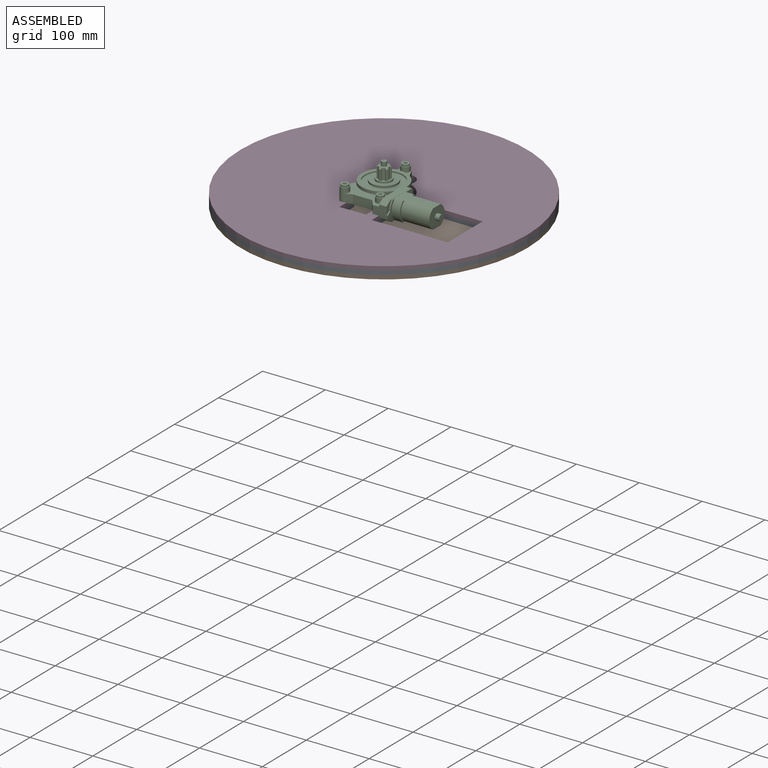
[diagram: assembled view]
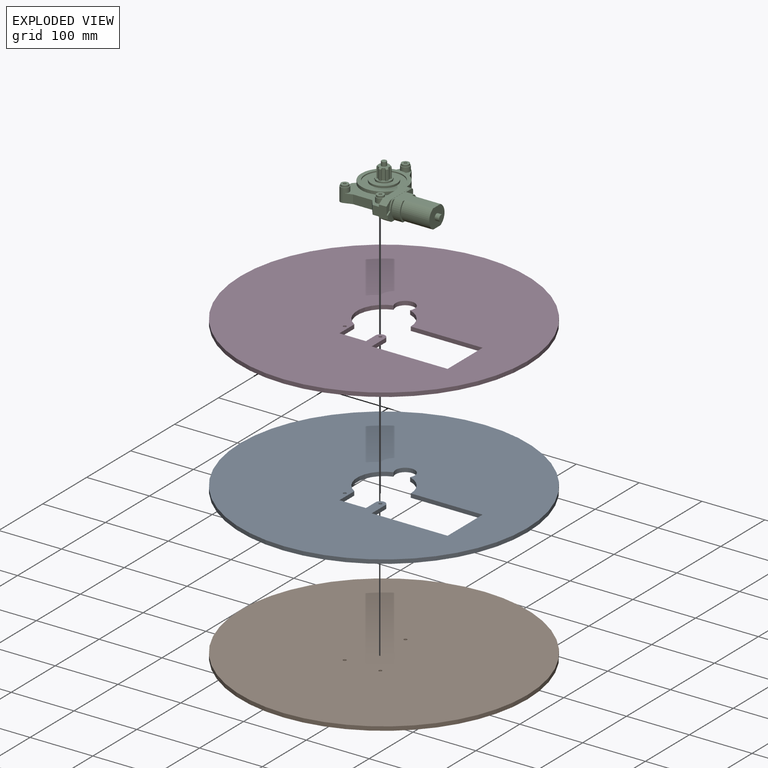
[diagram: exploded view]
GUIDED TOUR — MATED ASSEMBLY (Onshape document 587a86748546b116b2b0f726, AutoMate assembly 587a86748546b116b2b0f726_534ec9061648074f6dd9f165_3a35d88e8bba72077cc8f2f5_default)

This assembly has 4 components, labeled P0..P3 below (a component is one placed occurrence of a part; the same part can appear more than once), held together by 6 mates. A mate is a constraint between two components; its type names the relative motion it leaves free:
  CYLINDRICAL — leaves both rotation about and translation along the listed axis free,
  PLANAR — leaves sliding in the plane through the listed point (normal = the listed direction) and rotation about that normal free.
Axis/direction vectors are unit vectors and 'through' points are millimeter coordinates, both in the assembly's world frame.

MATES
  1. CYLINDRICAL "Cylindrical 3": P3 <-> P0, axis (0.000, 0.000, -1.000) through (147.65, -48.46, 6.53) mm
  2. CYLINDRICAL "Cylindrical 2": P0 <-> P1, axis (0.000, 0.000, -1.000) through (147.65, -48.46, 0.17) mm
  3. PLANAR "Planar 3": P0 <-> P1, direction (0.000, 0.000, -1.000) through (141.31, -45.52, -3.00) mm
  4. PLANAR "Planar 1": P2 <-> P1, direction (0.000, 0.000, -1.000) through (147.65, 0.26, -3.00) mm
  5. CYLINDRICAL "Cylindrical 1": P1 <-> P2, axis (0.000, 0.000, 1.000) through (147.65, -48.46, -3.00) mm
  6. PLANAR "Planar 4": P3 <-> P0, direction (0.000, 0.000, -1.000) through (141.31, -45.52, 3.35) mm

ASSEMBLY ORDER
  1. P2 — the base component [order verified]
  2. P3 [order verified]
  3. P0 [order verified]
  4. P1 [order verified]
Order-tag legend:
  [order verified] — this step's position reverses a verified removal order: the component was checked to insert without passing through the ones already placed.

Of the 4 components, 2 carry the full construction recipe — the FeatureScript program that regenerates the part's solid from scratch; the rest are supplied as boundary geometry only.
Each toured component is shown spotlighted twice — in the assembled view, then in the exploded view, where a leader line traces a displaced component back to its assembled socket (saturated green if recipe-attached, orange if geometry-only; every other component desaturated gray) — followed by its recipe or geometry summary and the mates that hold it.
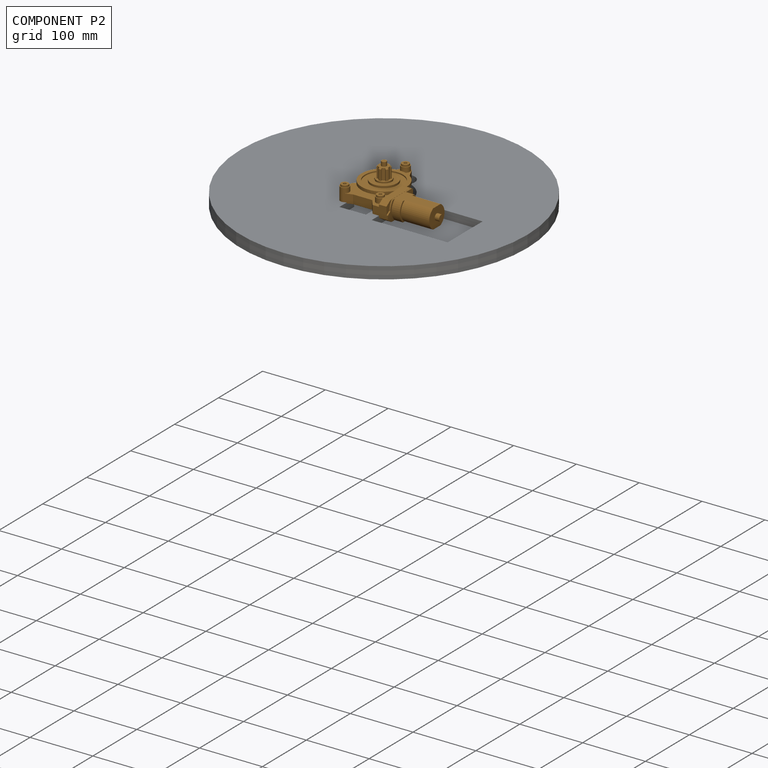
[diagram: component P2 — assembled]
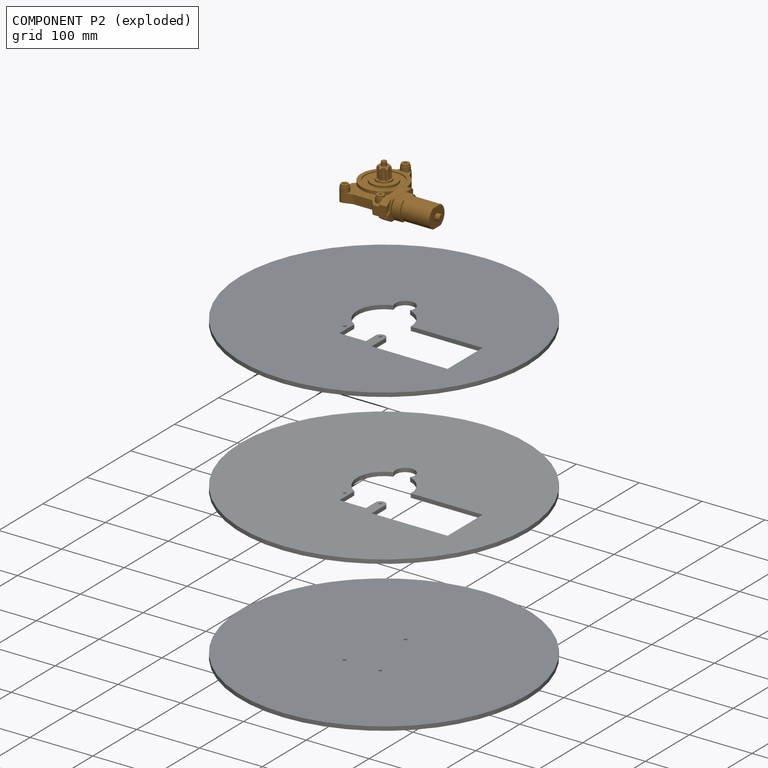
[diagram: component P2 — exploded]
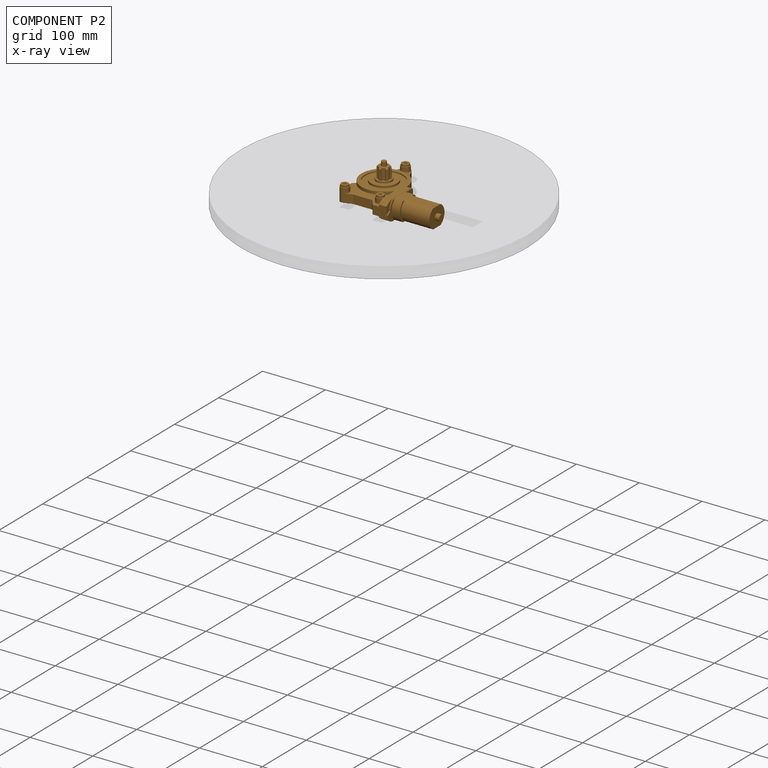
[diagram: component P2 — x-ray view]
COMPONENT P2 — geometry summary (no construction recipe available for this part):
  bounding box: 151.0 x 119.9 x 57.9 mm
  B-rep topology: 1 solid, 229 faces, 1130 edges
  volume: 213899 mm^3 (20% of its bounding box)
Held by: PLANAR mate "Planar 1" to P1; CYLINDRICAL mate "Cylindrical 1" to P1.
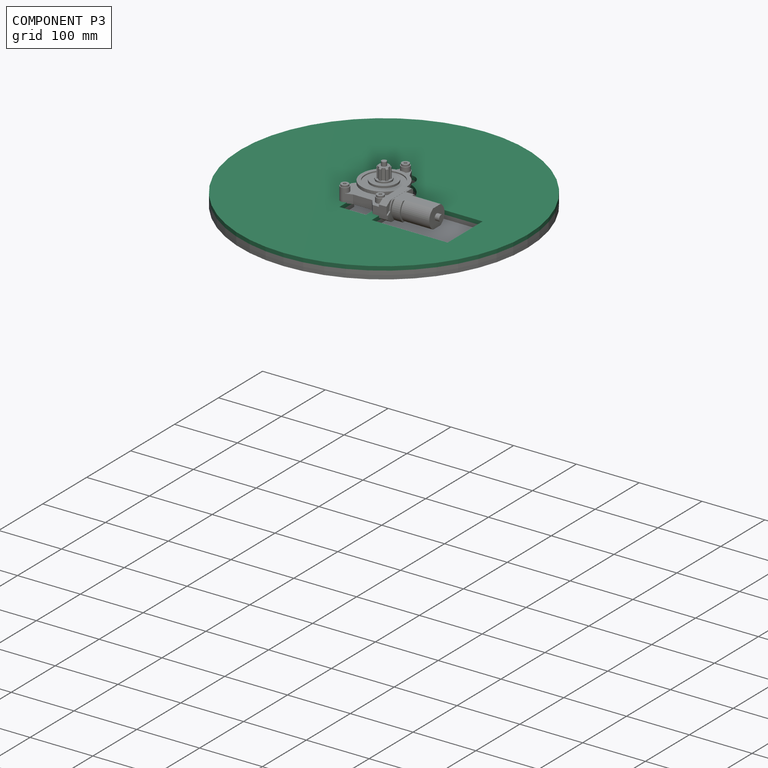
[diagram: component P3 — assembled]
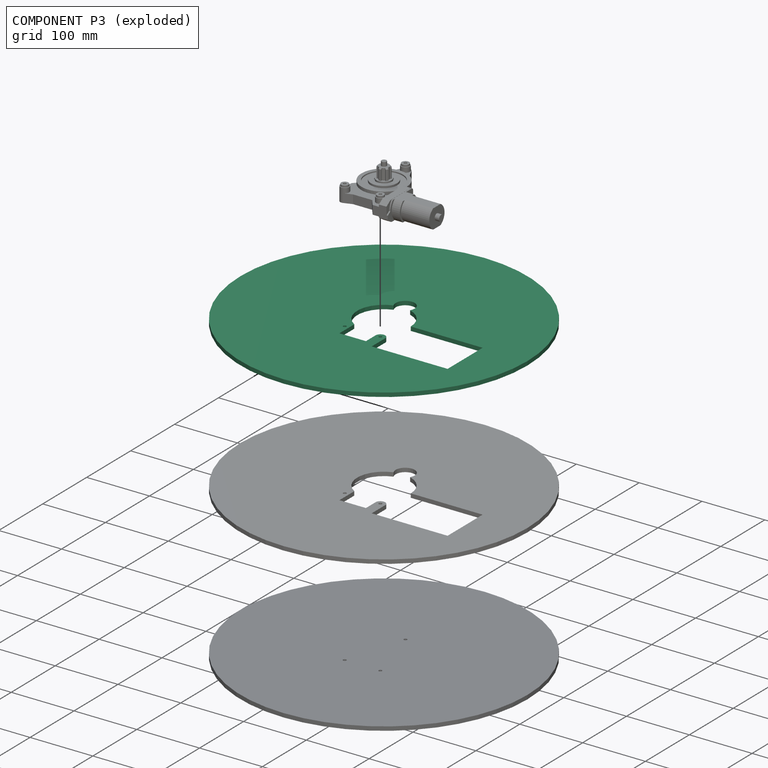
[diagram: component P3 — exploded]
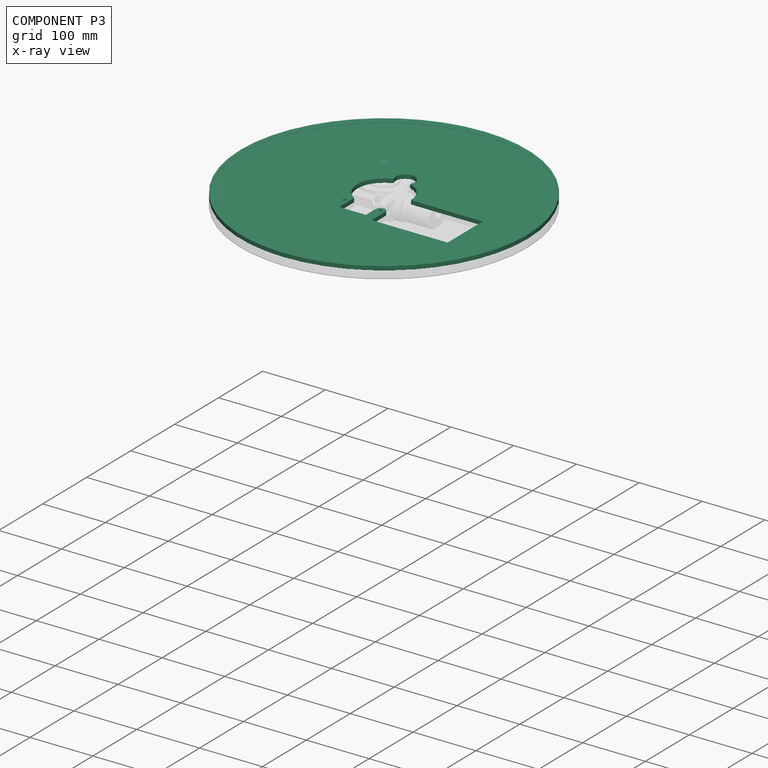
[diagram: component P3 — x-ray view]
COMPONENT P3 — same part as P0 (CADFS 00446631); its construction recipe is shown at P0.
Held by: CYLINDRICAL mate "Cylindrical 3" to P0; PLANAR mate "Planar 4" to P0.
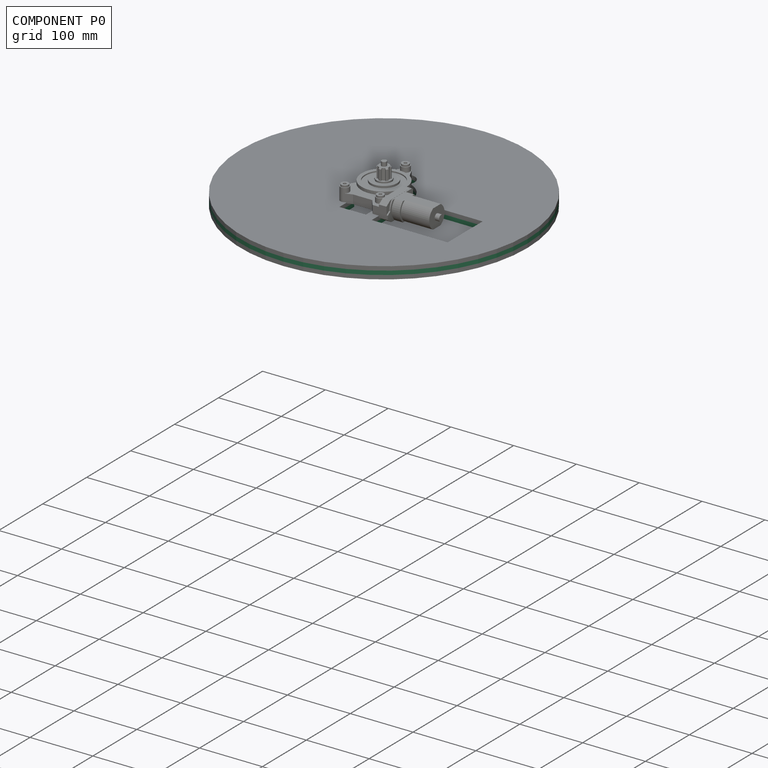
[diagram: component P0 — assembled]
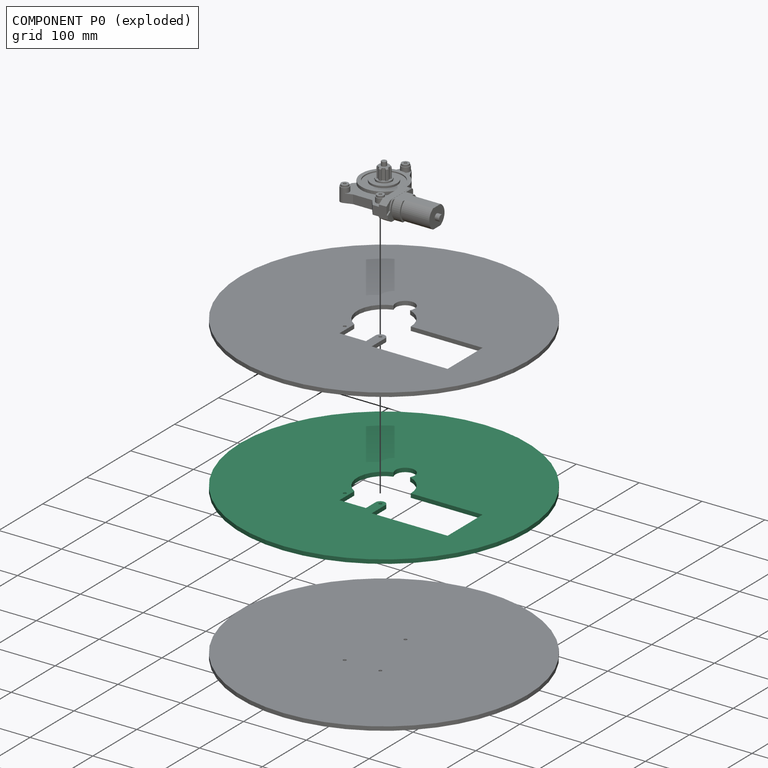
[diagram: component P0 — exploded]
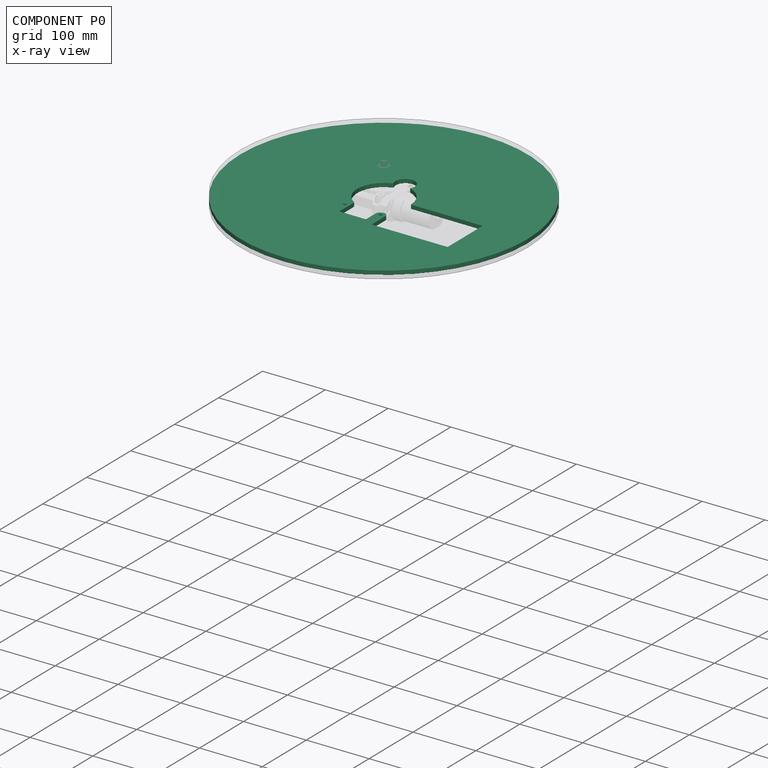
[diagram: component P0 — x-ray view]
COMPONENT P0 — recipe-attached (CADFS 00446631, mesh-verified: the recipe's output STEP matches this component's geometry to below the mesh-comparison resolution (tessellation chordal tolerance ~0.97 mm)).
Held by: CYLINDRICAL mate "Cylindrical 3" to P3; CYLINDRICAL mate "Cylindrical 2" to P1; PLANAR mate "Planar 3" to P1; PLANAR mate "Planar 4" to P3.
Construction recipe (FeatureScript — the CAD program that rebuilds this solid; sketch coordinates are in the units given by the * unit suffixes, e.g. mm):

FeatureScript 1511;
import(path : "onshape/std/geometry.fs", version : "1511.0");
import(path : "onshape/std/common.fs", version : "1511.0");
const mm = millimeter;
const VERTEX = EntityType.VERTEX;
const EDGE = EntityType.EDGE;
const FACE = EntityType.FACE;
const BODY = EntityType.BODY;
function v(x, y){return vector(x, y);}
function OD(order){return orderDisambiguation(order);}
function OSD(set){return originalSetDisambiguation(set);}
function TD(topology){return topologyDisambiguation(topology);}
function TDD(query){return trueDependencyDisambiguation(query);}
function sQuery(a, b, c) {return sketchEntityQuery(a, b, c);}

annotation { "Feature Type Name" : "Feature", "Feature Type Description" : "" }
export const myFeature = defineFeature(function(context is Context, id is Id, definition is map)
    precondition{}
    {
        {
            var Q0;
            Q0=qCreatedBy(makeId("Top.planeOp"),FACE);
            var sketch = newSketch(context, id + "F0", { "sketchPlane" : qUnion([Q0])});
            skCircle(sketch, "E0", {"center": v(0, 0) * mm, "radius": 228.6 * mm});
            skSolve(sketch);
        }
        {
            var Q0;
            Q0 = qSketchRegion(id + "F0", true);
            extrude(context, id + "F1", {"entities" : qUnion([Q0]), "depth" : 6.35 * mm});
        }
        {
            var Q0;
            Q0=makeQuery(id+"F1.opExtrude","CAP_FACE",FACE,{"disambiguationData":[OSD([sQuery(id+"F0.wireOp",EDGE,"E0")])],"isStart":false});
            var sketch = newSketch(context, id + "F2", { "sketchPlane" : qUnion([Q0])});
            skCircle(sketch, "E1", {"center": v(0, 48.72) * mm, "radius": 2.51 * mm});
            skCircle(sketch, "E2", {"center": v(28.4, -48.74) * mm, "radius": 2.51 * mm});
            skCircle(sketch, "E3", {"center": v(-28.4, -48.74) * mm, "radius": 2.51 * mm});
            skLineSegment(sketch, "E4", {"start": v(-28.4, -48.74) * mm, "end": v(28.4, -48.74) * mm, "construction": true});
            skPoint(sketch, "E5", {"position": v(0, -48.74) * mm});
            skSolve(sketch);
        }
        {
            var Q0;
            Q0 = qSketchRegion(id + "F2", true);
            extrude(context, id + "F3", {"entities" : qUnion([Q0]), "operationType" : NewBodyOperationType.REMOVE, "endBound" : BoundingType.UP_TO_NEXT, "oppositeDirection" : true, "depth" : 25.4 * mm});
        }
        {
            var Q0;
            Q0=makeQuery(id+"F1.opExtrude","CAP_FACE",FACE,{"disambiguationData":[OSD([sQuery(id+"F0.wireOp",EDGE,"E0")])],"isStart":false});
            var sketch = newSketch(context, id + "F4", { "sketchPlane" : qUnion([Q0])});
            skArc(sketch, "E6", {"start": v(42.6, 0) * mm, "mid": v(34.46, 25.06) * mm, "end": v(13.13, 40.53) * mm});
            skLineSegment(sketch, "E7.top", {"start": v(-21.61, -70.62) * mm, "end": v(20.65, -70.62) * mm});
            skLineSegment(sketch, "E7.left", {"start": v(-21.61, -36.72) * mm, "end": v(-21.61, -70.62) * mm});
            skLineSegment(sketch, "E7.right", {"start": v(20.65, -48.74) * mm, "end": v(20.65, -70.62) * mm});
            skLineSegment(sketch, "E8.bottom", {"start": v(42.6, 0) * mm, "end": v(157.08, 0) * mm});
            skLineSegment(sketch, "E8.right", {"start": v(157.08, 0) * mm, "end": v(157.08, -79.6) * mm});
            skArc(sketch, "E9", {"start": v(13.13, 40.53) * mm, "mid": v(0, 63.5) * mm, "end": v(-13.13, 40.53) * mm});
            skArc(sketch, "E10.trimOffspring", {"start": v(-13.13, 40.53) * mm, "mid": v(-42.35, 4.65) * mm, "end": v(-21.61, -36.72) * mm});
            skArc(sketch, "E11", {"start": v(36.14, -48.77) * mm, "mid": v(28.41, -41) * mm, "end": v(20.65, -48.74) * mm});
            skLineSegment(sketch, "E12", {"start": v(157.08, -79.6) * mm, "end": v(36.14, -79.6) * mm});
            skLineSegment(sketch, "E13", {"start": v(36.14, -48.72) * mm, "end": v(36.14, -79.6) * mm});
            skSolve(sketch);
        }
        {
            var Q0;
            Q0 = qSketchRegion(id + "F4", true);
            extrude(context, id + "F5", {"entities" : qUnion([Q0]), "operationType" : NewBodyOperationType.REMOVE, "endBound" : BoundingType.UP_TO_NEXT, "oppositeDirection" : true, "depth" : 25.4 * mm});
        }
    });
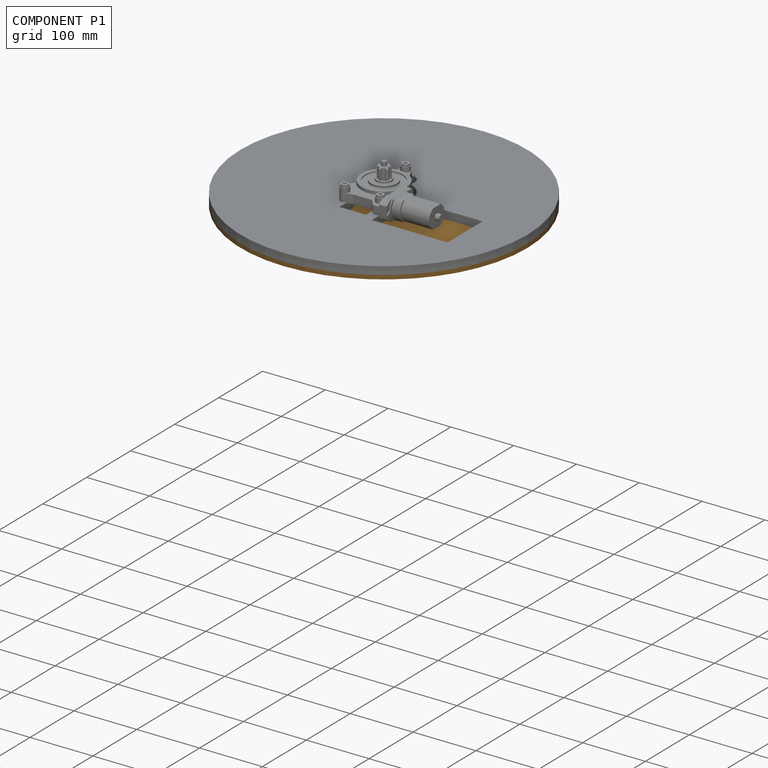
[diagram: component P1 — assembled]
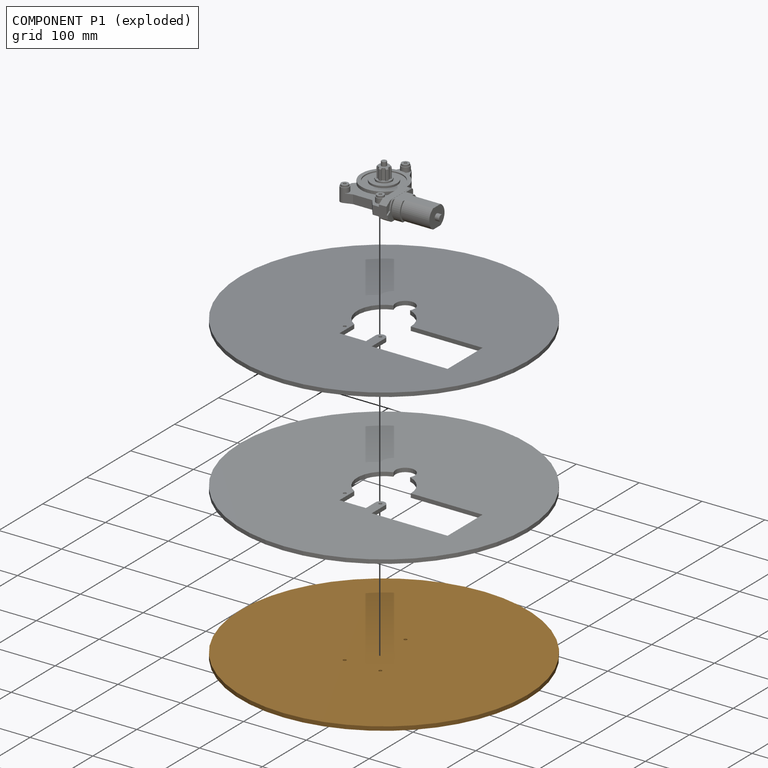
[diagram: component P1 — exploded]
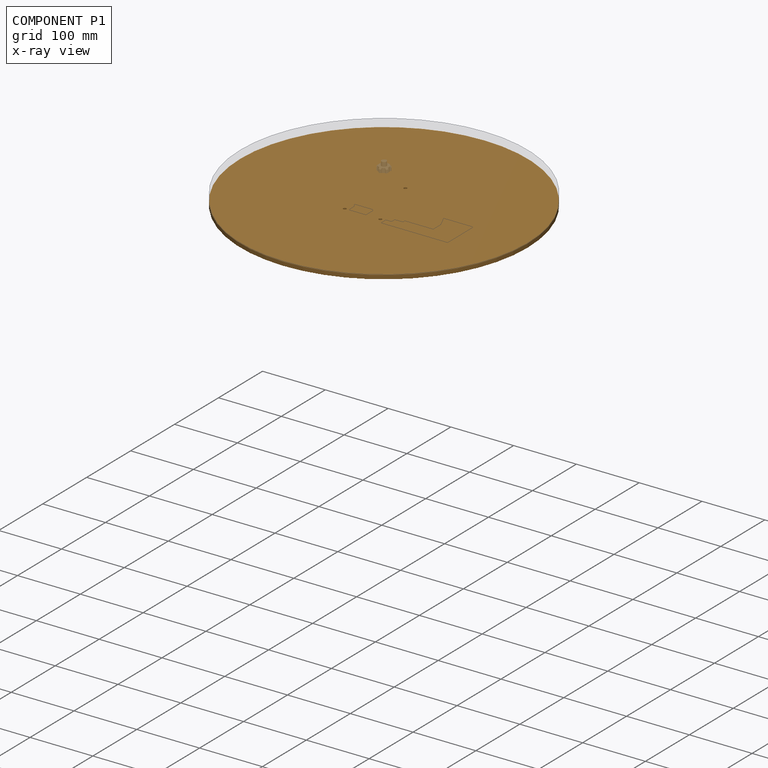
[diagram: component P1 — x-ray view]
COMPONENT P1 — geometry summary (no construction recipe available for this part):
  bounding box: 457.2 x 457.2 x 6.4 mm
  B-rep topology: 1 solid, 6 faces, 28 edges
  volume: 1042122 mm^3 (79% of its bounding box)
  symmetry: 2-fold rotationally symmetric about the x axis; 2-fold rotationally symmetric about the y axis; revolution-symmetric about the z axis through its bounding-box center; mirror-symmetric across its x mid-plane, y mid-plane, z mid-plane
Held by: CYLINDRICAL mate "Cylindrical 2" to P0; PLANAR mate "Planar 3" to P0; PLANAR mate "Planar 1" to P2; CYLINDRICAL mate "Cylindrical 1" to P2.
PROVENANCE & LICENSES
Assembly (occurrences, transforms, mates, per-part STEP geometry): AutoMate dataset, Zenodo record 7776208, CC0.
Construction recipes: CADFS (HuggingFace VladPyatov/CADFS, CC-BY-4.0, layered over the ABC dataset), FeatureScript reconstruction programs keyed by ABC model id.
Join: ABC meta listings map ABC model id -> Onshape documentId; within a shared document, parts are matched by geometric signature (bounding-box dims + volume at 0.1% relative tolerance, exact B-rep face/solid counts).
Verification: 2 of this assembly's 4 components carry a recipe attachment, and every attachment is mesh-verified: the CADFS STEP and the AutoMate member STEP were compared as meshes in their shared local frame (symmetric sampled-point-to-mesh distance); worst across the 2 attachments: below the mesh-comparison resolution (tessellation chordal tolerance ~0.97 mm) on a 647 mm part.
Renders: orthographic iso camera (az 35 / el 25); the floor grid conveys scale (grid pitch printed in each image; no ruler). In the exploded view each component is displaced by its stored offset vector: the offsets alone carry the explosion direction (mate normal/axis signs are not orientation cues and do not encode it), and separation distances are assigned per mate-chain, not proportionally to assembly-order depth.
